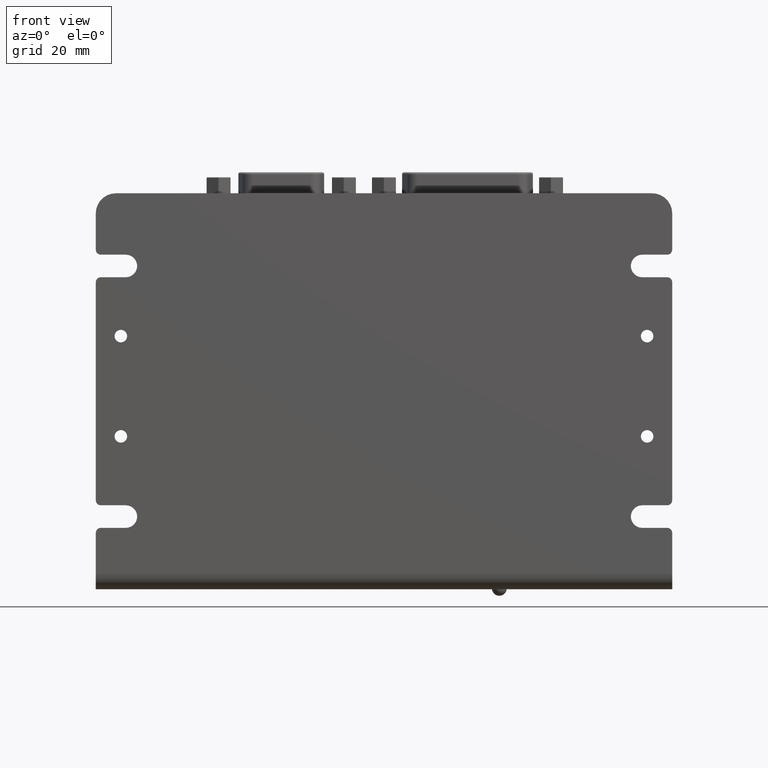
[diagram: clean part render]
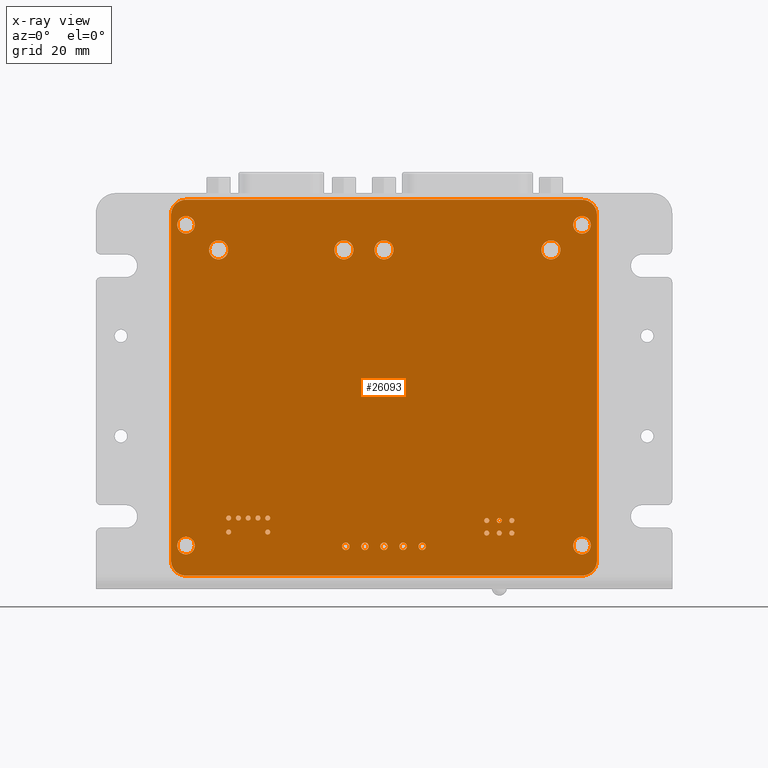
[diagram: x-ray — body ghosted, one internal face saturated and labeled with its STEP entity id]
A machine part, front view, then the same camera in x-ray: the body is ghosted and one INTERNAL B-rep face — a face not visible from any outside direction — is saturated and labeled: STEP entity #26093.
In plain terms, the highlighted planar face has unit normal (0, 1, 0).
Its self-contained STEP definition (entity closure, byte-faithful):
#24842=CARTESIAN_POINT('',(3.95E1,0.E0,3.25E1));
#24843=DIRECTION('',(0.E0,-1.E0,0.E0));
#24844=DIRECTION('',(1.E0,0.E0,0.E0));
#24845=AXIS2_PLACEMENT_3D('',#24842,#24843,#24844);
#24847=CARTESIAN_POINT('',(3.95E1,0.E0,3.25E1));
#24848=DIRECTION('',(0.E0,-1.E0,0.E0));
#24849=DIRECTION('',(-1.E0,0.E0,0.E0));
#24850=AXIS2_PLACEMENT_3D('',#24847,#24848,#24849);
#24852=CARTESIAN_POINT('',(3.95E1,0.E0,-3.15E1));
#24853=DIRECTION('',(0.E0,-1.E0,0.E0));
#24854=DIRECTION('',(1.E0,0.E0,0.E0));
#24855=AXIS2_PLACEMENT_3D('',#24852,#24853,#24854);
#24857=CARTESIAN_POINT('',(3.95E1,0.E0,-3.15E1));
#24858=DIRECTION('',(0.E0,-1.E0,0.E0));
#24859=DIRECTION('',(-1.E0,0.E0,0.E0));
#24860=AXIS2_PLACEMENT_3D('',#24857,#24858,#24859);
#24862=CARTESIAN_POINT('',(-3.95E1,0.E0,3.25E1));
#24863=DIRECTION('',(0.E0,-1.E0,0.E0));
#24864=DIRECTION('',(1.E0,0.E0,0.E0));
#24865=AXIS2_PLACEMENT_3D('',#24862,#24863,#24864);
#24867=CARTESIAN_POINT('',(-3.95E1,0.E0,3.25E1));
#24868=DIRECTION('',(0.E0,-1.E0,0.E0));
#24869=DIRECTION('',(-1.E0,0.E0,0.E0));
#24870=AXIS2_PLACEMENT_3D('',#24867,#24868,#24869);
#24872=CARTESIAN_POINT('',(-3.95E1,0.E0,-3.15E1));
#24873=DIRECTION('',(0.E0,-1.E0,0.E0));
#24874=DIRECTION('',(1.E0,0.E0,0.E0));
#24875=AXIS2_PLACEMENT_3D('',#24872,#24873,#24874);
#24877=CARTESIAN_POINT('',(-3.95E1,0.E0,-3.15E1));
#24878=DIRECTION('',(0.E0,-1.E0,0.E0));
#24879=DIRECTION('',(-1.E0,0.E0,0.E0));
#24880=AXIS2_PLACEMENT_3D('',#24877,#24878,#24879);
#24882=CARTESIAN_POINT('',(3.33E1,0.E0,2.75E1));
#24883=DIRECTION('',(0.E0,1.E0,0.E0));
#24884=DIRECTION('',(1.E0,0.E0,0.E0));
#24885=AXIS2_PLACEMENT_3D('',#24882,#24883,#24884);
#24887=CARTESIAN_POINT('',(3.33E1,0.E0,2.75E1));
#24888=DIRECTION('',(0.E0,1.E0,0.E0));
#24889=DIRECTION('',(-1.E0,0.E0,0.E0));
#24890=AXIS2_PLACEMENT_3D('',#24887,#24888,#24889);
#24892=CARTESIAN_POINT('',(0.E0,0.E0,2.75E1));
#24893=DIRECTION('',(0.E0,1.E0,0.E0));
#24894=DIRECTION('',(1.E0,0.E0,0.E0));
#24895=AXIS2_PLACEMENT_3D('',#24892,#24893,#24894);
#24897=CARTESIAN_POINT('',(0.E0,0.E0,2.75E1));
#24898=DIRECTION('',(0.E0,1.E0,0.E0));
#24899=DIRECTION('',(-1.E0,0.E0,0.E0));
#24900=AXIS2_PLACEMENT_3D('',#24897,#24898,#24899);
#24902=CARTESIAN_POINT('',(-8.E0,0.E0,2.75E1));
#24903=DIRECTION('',(0.E0,1.E0,0.E0));
#24904=DIRECTION('',(1.E0,0.E0,0.E0));
#24905=AXIS2_PLACEMENT_3D('',#24902,#24903,#24904);
#24907=CARTESIAN_POINT('',(-8.E0,0.E0,2.75E1));
#24908=DIRECTION('',(0.E0,1.E0,0.E0));
#24909=DIRECTION('',(-1.E0,0.E0,0.E0));
#24910=AXIS2_PLACEMENT_3D('',#24907,#24908,#24909);
#24912=CARTESIAN_POINT('',(-3.3E1,0.E0,2.75E1));
#24913=DIRECTION('',(0.E0,1.E0,0.E0));
#24914=DIRECTION('',(1.E0,0.E0,0.E0));
#24915=AXIS2_PLACEMENT_3D('',#24912,#24913,#24914);
#24917=CARTESIAN_POINT('',(-3.3E1,0.E0,2.75E1));
#24918=DIRECTION('',(0.E0,1.E0,0.E0));
#24919=DIRECTION('',(-1.E0,0.E0,0.E0));
#24920=AXIS2_PLACEMENT_3D('',#24917,#24918,#24919);
#24922=CARTESIAN_POINT('',(-7.62E0,0.E0,-3.165E1));
#24923=DIRECTION('',(0.E0,-1.E0,0.E0));
#24924=DIRECTION('',(1.E0,0.E0,0.E0));
#24925=AXIS2_PLACEMENT_3D('',#24922,#24923,#24924);
#24927=CARTESIAN_POINT('',(-7.62E0,0.E0,-3.165E1));
#24928=DIRECTION('',(0.E0,-1.E0,0.E0));
#24929=DIRECTION('',(-1.E0,0.E0,0.E0));
#24930=AXIS2_PLACEMENT_3D('',#24927,#24928,#24929);
#24932=CARTESIAN_POINT('',(-3.81E0,0.E0,-3.165E1));
#24933=DIRECTION('',(0.E0,-1.E0,0.E0));
#24934=DIRECTION('',(1.E0,0.E0,0.E0));
#24935=AXIS2_PLACEMENT_3D('',#24932,#24933,#24934);
#24937=CARTESIAN_POINT('',(-3.81E0,0.E0,-3.165E1));
#24938=DIRECTION('',(0.E0,-1.E0,0.E0));
#24939=DIRECTION('',(-1.E0,0.E0,0.E0));
#24940=AXIS2_PLACEMENT_3D('',#24937,#24938,#24939);
#24942=CARTESIAN_POINT('',(0.E0,0.E0,-3.165E1));
#24943=DIRECTION('',(0.E0,-1.E0,0.E0));
#24944=DIRECTION('',(1.E0,0.E0,0.E0));
#24945=AXIS2_PLACEMENT_3D('',#24942,#24943,#24944);
#24947=CARTESIAN_POINT('',(0.E0,0.E0,-3.165E1));
#24948=DIRECTION('',(0.E0,-1.E0,0.E0));
#24949=DIRECTION('',(-1.E0,0.E0,0.E0));
#24950=AXIS2_PLACEMENT_3D('',#24947,#24948,#24949);
#24952=CARTESIAN_POINT('',(3.81E0,0.E0,-3.165E1));
#24953=DIRECTION('',(0.E0,-1.E0,0.E0));
#24954=DIRECTION('',(1.E0,0.E0,0.E0));
#24955=AXIS2_PLACEMENT_3D('',#24952,#24953,#24954);
#24957=CARTESIAN_POINT('',(3.81E0,0.E0,-3.165E1));
#24958=DIRECTION('',(0.E0,-1.E0,0.E0));
#24959=DIRECTION('',(-1.E0,0.E0,0.E0));
#24960=AXIS2_PLACEMENT_3D('',#24957,#24958,#24959);
#24962=CARTESIAN_POINT('',(7.62E0,0.E0,-3.165E1));
#24963=DIRECTION('',(0.E0,-1.E0,0.E0));
#24964=DIRECTION('',(1.E0,0.E0,0.E0));
#24965=AXIS2_PLACEMENT_3D('',#24962,#24963,#24964);
#24967=CARTESIAN_POINT('',(7.62E0,0.E0,-3.165E1));
#24968=DIRECTION('',(0.E0,-1.E0,0.E0));
#24969=DIRECTION('',(-1.E0,0.E0,0.E0));
#24970=AXIS2_PLACEMENT_3D('',#24967,#24968,#24969);
#24972=CARTESIAN_POINT('',(3.95E1,0.E0,-3.45E1));
#24973=DIRECTION('',(0.E0,-1.E0,0.E0));
#24974=DIRECTION('',(0.E0,0.E0,-1.E0));
#24975=AXIS2_PLACEMENT_3D('',#24972,#24973,#24974);
#24977=DIRECTION('',(-1.E0,0.E0,0.E0));
#24978=VECTOR('',#24977,7.9E1);
#24979=CARTESIAN_POINT('',(3.95E1,0.E0,-3.75E1));
#24980=LINE('',#24979,#24978);
#24981=CARTESIAN_POINT('',(-3.95E1,0.E0,-3.45E1));
#24982=DIRECTION('',(0.E0,-1.E0,0.E0));
#24983=DIRECTION('',(-1.E0,0.E0,0.E0));
#24984=AXIS2_PLACEMENT_3D('',#24981,#24982,#24983);
#24986=DIRECTION('',(0.E0,0.E0,1.E0));
#24987=VECTOR('',#24986,6.9E1);
#24988=CARTESIAN_POINT('',(-4.25E1,0.E0,-3.45E1));
#24989=LINE('',#24988,#24987);
#24990=CARTESIAN_POINT('',(-3.95E1,0.E0,3.45E1));
#24991=DIRECTION('',(0.E0,-1.E0,0.E0));
#24992=DIRECTION('',(0.E0,0.E0,1.E0));
#24993=AXIS2_PLACEMENT_3D('',#24990,#24991,#24992);
#24995=DIRECTION('',(1.E0,0.E0,0.E0));
#24996=VECTOR('',#24995,7.9E1);
#24997=CARTESIAN_POINT('',(-3.95E1,0.E0,3.75E1));
#24998=LINE('',#24997,#24996);
#24999=CARTESIAN_POINT('',(3.95E1,0.E0,3.45E1));
#25000=DIRECTION('',(0.E0,-1.E0,0.E0));
#25001=DIRECTION('',(1.E0,0.E0,0.E0));
#25002=AXIS2_PLACEMENT_3D('',#24999,#25000,#25001);
#25004=DIRECTION('',(0.E0,0.E0,-1.E0));
#25005=VECTOR('',#25004,6.9E1);
#25006=CARTESIAN_POINT('',(4.25E1,0.E0,3.45E1));
#25007=LINE('',#25006,#25005);
#25008=CARTESIAN_POINT('',(-3.1E1,0.E0,-2.88E1));
#25009=DIRECTION('',(0.E0,-1.E0,0.E0));
#25010=DIRECTION('',(1.E0,0.E0,0.E0));
#25011=AXIS2_PLACEMENT_3D('',#25008,#25009,#25010);
#25013=CARTESIAN_POINT('',(-3.1E1,0.E0,-2.88E1));
#25014=DIRECTION('',(0.E0,-1.E0,0.E0));
#25015=DIRECTION('',(-1.E0,0.E0,0.E0));
#25016=AXIS2_PLACEMENT_3D('',#25013,#25014,#25015);
#25018=CARTESIAN_POINT('',(-2.32E1,0.E0,-2.88E1));
#25019=DIRECTION('',(0.E0,-1.E0,0.E0));
#25020=DIRECTION('',(1.E0,0.E0,0.E0));
#25021=AXIS2_PLACEMENT_3D('',#25018,#25019,#25020);
#25023=CARTESIAN_POINT('',(-2.32E1,0.E0,-2.88E1));
#25024=DIRECTION('',(0.E0,-1.E0,0.E0));
#25025=DIRECTION('',(-1.E0,0.E0,0.E0));
#25026=AXIS2_PLACEMENT_3D('',#25023,#25024,#25025);
#25028=CARTESIAN_POINT('',(-3.1E1,0.E0,-2.6E1));
#25029=DIRECTION('',(0.E0,-1.E0,0.E0));
#25030=DIRECTION('',(1.E0,0.E0,0.E0));
#25031=AXIS2_PLACEMENT_3D('',#25028,#25029,#25030);
#25033=CARTESIAN_POINT('',(-3.1E1,0.E0,-2.6E1));
#25034=DIRECTION('',(0.E0,-1.E0,0.E0));
#25035=DIRECTION('',(-1.E0,0.E0,0.E0));
#25036=AXIS2_PLACEMENT_3D('',#25033,#25034,#25035);
#25038=CARTESIAN_POINT('',(-2.905E1,0.E0,-2.6E1));
#25039=DIRECTION('',(0.E0,-1.E0,0.E0));
#25040=DIRECTION('',(1.E0,0.E0,0.E0));
#25041=AXIS2_PLACEMENT_3D('',#25038,#25039,#25040);
#25043=CARTESIAN_POINT('',(-2.905E1,0.E0,-2.6E1));
#25044=DIRECTION('',(0.E0,-1.E0,0.E0));
#25045=DIRECTION('',(-1.E0,0.E0,0.E0));
#25046=AXIS2_PLACEMENT_3D('',#25043,#25044,#25045);
#25048=CARTESIAN_POINT('',(-2.71E1,0.E0,-2.6E1));
#25049=DIRECTION('',(0.E0,-1.E0,0.E0));
#25050=DIRECTION('',(1.E0,0.E0,0.E0));
#25051=AXIS2_PLACEMENT_3D('',#25048,#25049,#25050);
#25053=CARTESIAN_POINT('',(-2.71E1,0.E0,-2.6E1));
#25054=DIRECTION('',(0.E0,-1.E0,0.E0));
#25055=DIRECTION('',(-1.E0,0.E0,0.E0));
#25056=AXIS2_PLACEMENT_3D('',#25053,#25054,#25055);
#25058=CARTESIAN_POINT('',(-2.515E1,0.E0,-2.6E1));
#25059=DIRECTION('',(0.E0,-1.E0,0.E0));
#25060=DIRECTION('',(1.E0,0.E0,0.E0));
#25061=AXIS2_PLACEMENT_3D('',#25058,#25059,#25060);
#25063=CARTESIAN_POINT('',(-2.515E1,0.E0,-2.6E1));
#25064=DIRECTION('',(0.E0,-1.E0,0.E0));
#25065=DIRECTION('',(-1.E0,0.E0,0.E0));
#25066=AXIS2_PLACEMENT_3D('',#25063,#25064,#25065);
#25068=CARTESIAN_POINT('',(-2.32E1,0.E0,-2.6E1));
#25069=DIRECTION('',(0.E0,-1.E0,0.E0));
#25070=DIRECTION('',(1.E0,0.E0,0.E0));
#25071=AXIS2_PLACEMENT_3D('',#25068,#25069,#25070);
#25073=CARTESIAN_POINT('',(-2.32E1,0.E0,-2.6E1));
#25074=DIRECTION('',(0.E0,-1.E0,0.E0));
#25075=DIRECTION('',(-1.E0,0.E0,0.E0));
#25076=AXIS2_PLACEMENT_3D('',#25073,#25074,#25075);
#25078=CARTESIAN_POINT('',(2.05E1,0.E0,-2.9E1));
#25079=DIRECTION('',(0.E0,-1.E0,0.E0));
#25080=DIRECTION('',(1.E0,0.E0,0.E0));
#25081=AXIS2_PLACEMENT_3D('',#25078,#25079,#25080);
#25083=CARTESIAN_POINT('',(2.05E1,0.E0,-2.9E1));
#25084=DIRECTION('',(0.E0,-1.E0,0.E0));
#25085=DIRECTION('',(-1.E0,0.E0,0.E0));
#25086=AXIS2_PLACEMENT_3D('',#25083,#25084,#25085);
#25088=CARTESIAN_POINT('',(2.3E1,0.E0,-2.9E1));
#25089=DIRECTION('',(0.E0,-1.E0,0.E0));
#25090=DIRECTION('',(1.E0,0.E0,0.E0));
#25091=AXIS2_PLACEMENT_3D('',#25088,#25089,#25090);
#25093=CARTESIAN_POINT('',(2.3E1,0.E0,-2.9E1));
#25094=DIRECTION('',(0.E0,-1.E0,0.E0));
#25095=DIRECTION('',(-1.E0,0.E0,0.E0));
#25096=AXIS2_PLACEMENT_3D('',#25093,#25094,#25095);
#25098=CARTESIAN_POINT('',(2.55E1,0.E0,-2.9E1));
#25099=DIRECTION('',(0.E0,-1.E0,0.E0));
#25100=DIRECTION('',(1.E0,0.E0,0.E0));
#25101=AXIS2_PLACEMENT_3D('',#25098,#25099,#25100);
#25103=CARTESIAN_POINT('',(2.55E1,0.E0,-2.9E1));
#25104=DIRECTION('',(0.E0,-1.E0,0.E0));
#25105=DIRECTION('',(-1.E0,0.E0,0.E0));
#25106=AXIS2_PLACEMENT_3D('',#25103,#25104,#25105);
#25108=CARTESIAN_POINT('',(2.05E1,0.E0,-2.65E1));
#25109=DIRECTION('',(0.E0,-1.E0,0.E0));
#25110=DIRECTION('',(1.E0,0.E0,0.E0));
#25111=AXIS2_PLACEMENT_3D('',#25108,#25109,#25110);
#25113=CARTESIAN_POINT('',(2.05E1,0.E0,-2.65E1));
#25114=DIRECTION('',(0.E0,-1.E0,0.E0));
#25115=DIRECTION('',(-1.E0,0.E0,0.E0));
#25116=AXIS2_PLACEMENT_3D('',#25113,#25114,#25115);
#25118=CARTESIAN_POINT('',(2.3E1,0.E0,-2.65E1));
#25119=DIRECTION('',(0.E0,-1.E0,0.E0));
#25120=DIRECTION('',(1.E0,0.E0,0.E0));
#25121=AXIS2_PLACEMENT_3D('',#25118,#25119,#25120);
#25123=CARTESIAN_POINT('',(2.3E1,0.E0,-2.65E1));
#25124=DIRECTION('',(0.E0,-1.E0,0.E0));
#25125=DIRECTION('',(-1.E0,0.E0,0.E0));
#25126=AXIS2_PLACEMENT_3D('',#25123,#25124,#25125);
#25128=CARTESIAN_POINT('',(2.55E1,0.E0,-2.65E1));
#25129=DIRECTION('',(0.E0,-1.E0,0.E0));
#25130=DIRECTION('',(1.E0,0.E0,0.E0));
#25131=AXIS2_PLACEMENT_3D('',#25128,#25129,#25130);
#25133=CARTESIAN_POINT('',(2.55E1,0.E0,-2.65E1));
#25134=DIRECTION('',(0.E0,-1.E0,0.E0));
#25135=DIRECTION('',(-1.E0,0.E0,0.E0));
#25136=AXIS2_PLACEMENT_3D('',#25133,#25134,#25135);
#25674=CARTESIAN_POINT('',(4.125E1,0.E0,3.25E1));
#25675=CARTESIAN_POINT('',(3.775E1,0.E0,3.25E1));
#25676=VERTEX_POINT('',#25674);
#25677=VERTEX_POINT('',#25675);
#25678=CARTESIAN_POINT('',(4.125E1,0.E0,-3.15E1));
#25679=CARTESIAN_POINT('',(3.775E1,0.E0,-3.15E1));
#25680=VERTEX_POINT('',#25678);
#25681=VERTEX_POINT('',#25679);
#25682=CARTESIAN_POINT('',(-3.775E1,0.E0,3.25E1));
#25683=CARTESIAN_POINT('',(-4.125E1,0.E0,3.25E1));
#25684=VERTEX_POINT('',#25682);
#25685=VERTEX_POINT('',#25683);
#25686=CARTESIAN_POINT('',(-3.775E1,0.E0,-3.15E1));
#25687=CARTESIAN_POINT('',(-4.125E1,0.E0,-3.15E1));
#25688=VERTEX_POINT('',#25686);
#25689=VERTEX_POINT('',#25687);
#25706=CARTESIAN_POINT('',(3.95E1,0.E0,-3.75E1));
#25707=CARTESIAN_POINT('',(4.25E1,0.E0,-3.45E1));
#25708=VERTEX_POINT('',#25706);
#25709=VERTEX_POINT('',#25707);
#25714=CARTESIAN_POINT('',(-4.25E1,0.E0,-3.45E1));
#25715=CARTESIAN_POINT('',(-3.95E1,0.E0,-3.75E1));
#25716=VERTEX_POINT('',#25714);
#25717=VERTEX_POINT('',#25715);
#25722=CARTESIAN_POINT('',(-3.95E1,0.E0,3.75E1));
#25723=CARTESIAN_POINT('',(-4.25E1,0.E0,3.45E1));
#25724=VERTEX_POINT('',#25722);
#25725=VERTEX_POINT('',#25723);
#25730=CARTESIAN_POINT('',(4.25E1,0.E0,3.45E1));
#25731=CARTESIAN_POINT('',(3.95E1,0.E0,3.75E1));
#25732=VERTEX_POINT('',#25730);
#25733=VERTEX_POINT('',#25731);
#25738=CARTESIAN_POINT('',(3.52E1,0.E0,2.75E1));
#25739=CARTESIAN_POINT('',(3.14E1,0.E0,2.75E1));
#25740=VERTEX_POINT('',#25738);
#25741=VERTEX_POINT('',#25739);
#25742=CARTESIAN_POINT('',(1.9E0,0.E0,2.75E1));
#25743=CARTESIAN_POINT('',(-1.9E0,0.E0,2.75E1));
#25744=VERTEX_POINT('',#25742);
#25745=VERTEX_POINT('',#25743);
#25746=CARTESIAN_POINT('',(-6.1E0,0.E0,2.75E1));
#25747=CARTESIAN_POINT('',(-9.9E0,0.E0,2.75E1));
#25748=VERTEX_POINT('',#25746);
#25749=VERTEX_POINT('',#25747);
#25750=CARTESIAN_POINT('',(-3.11E1,0.E0,2.75E1));
#25751=CARTESIAN_POINT('',(-3.49E1,0.E0,2.75E1));
#25752=VERTEX_POINT('',#25750);
#25753=VERTEX_POINT('',#25751);
#25770=CARTESIAN_POINT('',(-6.87E0,0.E0,-3.165E1));
#25771=CARTESIAN_POINT('',(-8.37E0,0.E0,-3.165E1));
#25772=VERTEX_POINT('',#25770);
#25773=VERTEX_POINT('',#25771);
#25778=CARTESIAN_POINT('',(-3.06E0,0.E0,-3.165E1));
#25779=CARTESIAN_POINT('',(-4.56E0,0.E0,-3.165E1));
#25780=VERTEX_POINT('',#25778);
#25781=VERTEX_POINT('',#25779);
#25786=CARTESIAN_POINT('',(7.5E-1,0.E0,-3.165E1));
#25787=CARTESIAN_POINT('',(-7.5E-1,0.E0,-3.165E1));
#25788=VERTEX_POINT('',#25786);
#25789=VERTEX_POINT('',#25787);
#25794=CARTESIAN_POINT('',(4.56E0,0.E0,-3.165E1));
#25795=CARTESIAN_POINT('',(3.06E0,0.E0,-3.165E1));
#25796=VERTEX_POINT('',#25794);
#25797=VERTEX_POINT('',#25795);
#25802=CARTESIAN_POINT('',(8.37E0,0.E0,-3.165E1));
#25803=CARTESIAN_POINT('',(6.87E0,0.E0,-3.165E1));
#25804=VERTEX_POINT('',#25802);
#25805=VERTEX_POINT('',#25803);
#25810=CARTESIAN_POINT('',(-3.05E1,0.E0,-2.88E1));
#25811=CARTESIAN_POINT('',(-3.15E1,0.E0,-2.88E1));
#25812=VERTEX_POINT('',#25810);
#25813=VERTEX_POINT('',#25811);
#25818=CARTESIAN_POINT('',(-3.05E1,0.E0,-2.6E1));
#25819=CARTESIAN_POINT('',(-3.15E1,0.E0,-2.6E1));
#25820=VERTEX_POINT('',#25818);
#25821=VERTEX_POINT('',#25819);
#25826=CARTESIAN_POINT('',(-2.27E1,0.E0,-2.88E1));
#25827=CARTESIAN_POINT('',(-2.37E1,0.E0,-2.88E1));
#25828=VERTEX_POINT('',#25826);
#25829=VERTEX_POINT('',#25827);
#25834=CARTESIAN_POINT('',(-2.27E1,0.E0,-2.6E1));
#25835=CARTESIAN_POINT('',(-2.37E1,0.E0,-2.6E1));
#25836=VERTEX_POINT('',#25834);
#25837=VERTEX_POINT('',#25835);
#25842=CARTESIAN_POINT('',(2.1E1,0.E0,-2.9E1));
#25843=CARTESIAN_POINT('',(2.E1,0.E0,-2.9E1));
#25844=VERTEX_POINT('',#25842);
#25845=VERTEX_POINT('',#25843);
#25850=CARTESIAN_POINT('',(2.35E1,0.E0,-2.9E1));
#25851=CARTESIAN_POINT('',(2.25E1,0.E0,-2.9E1));
#25852=VERTEX_POINT('',#25850);
#25853=VERTEX_POINT('',#25851);
#25858=CARTESIAN_POINT('',(2.6E1,0.E0,-2.9E1));
#25859=CARTESIAN_POINT('',(2.5E1,0.E0,-2.9E1));
#25860=VERTEX_POINT('',#25858);
#25861=VERTEX_POINT('',#25859);
#25866=CARTESIAN_POINT('',(2.1E1,0.E0,-2.65E1));
#25867=CARTESIAN_POINT('',(2.E1,0.E0,-2.65E1));
#25868=VERTEX_POINT('',#25866);
#25869=VERTEX_POINT('',#25867);
#25874=CARTESIAN_POINT('',(2.35E1,0.E0,-2.65E1));
#25875=CARTESIAN_POINT('',(2.25E1,0.E0,-2.65E1));
#25876=VERTEX_POINT('',#25874);
#25877=VERTEX_POINT('',#25875);
#25882=CARTESIAN_POINT('',(2.6E1,0.E0,-2.65E1));
#25883=CARTESIAN_POINT('',(2.5E1,0.E0,-2.65E1));
#25884=VERTEX_POINT('',#25882);
#25885=VERTEX_POINT('',#25883);
#25890=CARTESIAN_POINT('',(-2.855E1,0.E0,-2.6E1));
#25891=CARTESIAN_POINT('',(-2.955E1,0.E0,-2.6E1));
#25892=VERTEX_POINT('',#25890);
#25893=VERTEX_POINT('',#25891);
#25898=CARTESIAN_POINT('',(-2.66E1,0.E0,-2.6E1));
#25899=CARTESIAN_POINT('',(-2.76E1,0.E0,-2.6E1));
#25900=VERTEX_POINT('',#25898);
#25901=VERTEX_POINT('',#25899);
#25906=CARTESIAN_POINT('',(-2.465E1,0.E0,-2.6E1));
#25907=CARTESIAN_POINT('',(-2.565E1,0.E0,-2.6E1));
#25908=VERTEX_POINT('',#25906);
#25909=VERTEX_POINT('',#25907);
#25914=CARTESIAN_POINT('',(0.E0,0.E0,0.E0));
#25915=DIRECTION('',(0.E0,1.E0,0.E0));
#25916=DIRECTION('',(1.E0,0.E0,0.E0));
#25917=AXIS2_PLACEMENT_3D('',#25914,#25915,#25916);
#25918=PLANE('',#25917);
#25920=ORIENTED_EDGE('',*,*,#25919,.F.);
#25922=ORIENTED_EDGE('',*,*,#25921,.T.);
#25924=ORIENTED_EDGE('',*,*,#25923,.F.);
#25926=ORIENTED_EDGE('',*,*,#25925,.T.);
#25928=ORIENTED_EDGE('',*,*,#25927,.F.);
#25930=ORIENTED_EDGE('',*,*,#25929,.T.);
#25932=ORIENTED_EDGE('',*,*,#25931,.F.);
#25934=ORIENTED_EDGE('',*,*,#25933,.T.);
#25935=EDGE_LOOP('',(#25920,#25922,#25924,#25926,#25928,#25930,#25932,#25934));
#25936=FACE_OUTER_BOUND('',#25935,.F.);
#25938=ORIENTED_EDGE('',*,*,#25937,.T.);
#25940=ORIENTED_EDGE('',*,*,#25939,.T.);
#25941=EDGE_LOOP('',(#25938,#25940));
#25942=FACE_BOUND('',#25941,.F.);
#25944=ORIENTED_EDGE('',*,*,#25943,.T.);
#25946=ORIENTED_EDGE('',*,*,#25945,.T.);
#25947=EDGE_LOOP('',(#25944,#25946));
#25948=FACE_BOUND('',#25947,.F.);
#25950=ORIENTED_EDGE('',*,*,#25949,.T.);
#25952=ORIENTED_EDGE('',*,*,#25951,.T.);
#25953=EDGE_LOOP('',(#25950,#25952));
#25954=FACE_BOUND('',#25953,.F.);
#25956=ORIENTED_EDGE('',*,*,#25955,.F.);
#25958=ORIENTED_EDGE('',*,*,#25957,.F.);
#25959=EDGE_LOOP('',(#25956,#25958));
#25960=FACE_BOUND('',#25959,.F.);
#25962=ORIENTED_EDGE('',*,*,#25961,.F.);
#25964=ORIENTED_EDGE('',*,*,#25963,.F.);
#25965=EDGE_LOOP('',(#25962,#25964));
#25966=FACE_BOUND('',#25965,.F.);
#25968=ORIENTED_EDGE('',*,*,#25967,.F.);
#25970=ORIENTED_EDGE('',*,*,#25969,.F.);
#25971=EDGE_LOOP('',(#25968,#25970));
#25972=FACE_BOUND('',#25971,.F.);
#25974=ORIENTED_EDGE('',*,*,#25973,.F.);
#25976=ORIENTED_EDGE('',*,*,#25975,.F.);
#25977=EDGE_LOOP('',(#25974,#25976));
#25978=FACE_BOUND('',#25977,.F.);
#25980=ORIENTED_EDGE('',*,*,#25979,.T.);
#25982=ORIENTED_EDGE('',*,*,#25981,.T.);
#25983=EDGE_LOOP('',(#25980,#25982));
#25984=FACE_BOUND('',#25983,.F.);
#25986=ORIENTED_EDGE('',*,*,#25985,.T.);
#25988=ORIENTED_EDGE('',*,*,#25987,.T.);
#25989=EDGE_LOOP('',(#25986,#25988));
#25990=FACE_BOUND('',#25989,.F.);
#25992=ORIENTED_EDGE('',*,*,#25991,.T.);
#25994=ORIENTED_EDGE('',*,*,#25993,.T.);
#25995=EDGE_LOOP('',(#25992,#25994));
#25996=FACE_BOUND('',#25995,.F.);
#25998=ORIENTED_EDGE('',*,*,#25997,.T.);
#26000=ORIENTED_EDGE('',*,*,#25999,.T.);
#26001=EDGE_LOOP('',(#25998,#26000));
#26002=FACE_BOUND('',#26001,.F.);
#26004=ORIENTED_EDGE('',*,*,#26003,.T.);
#26006=ORIENTED_EDGE('',*,*,#26005,.T.);
#26007=EDGE_LOOP('',(#26004,#26006));
#26008=FACE_BOUND('',#26007,.F.);
#26010=ORIENTED_EDGE('',*,*,#26009,.T.);
#26012=ORIENTED_EDGE('',*,*,#26011,.T.);
#26013=EDGE_LOOP('',(#26010,#26012));
#26014=FACE_BOUND('',#26013,.F.);
#26016=ORIENTED_EDGE('',*,*,#26015,.T.);
#26018=ORIENTED_EDGE('',*,*,#26017,.T.);
#26019=EDGE_LOOP('',(#26016,#26018));
#26020=FACE_BOUND('',#26019,.F.);
#26022=ORIENTED_EDGE('',*,*,#26021,.T.);
#26024=ORIENTED_EDGE('',*,*,#26023,.T.);
#26025=EDGE_LOOP('',(#26022,#26024));
#26026=FACE_BOUND('',#26025,.F.);
#26028=ORIENTED_EDGE('',*,*,#26027,.T.);
#26030=ORIENTED_EDGE('',*,*,#26029,.T.);
#26031=EDGE_LOOP('',(#26028,#26030));
#26032=FACE_BOUND('',#26031,.F.);
#26034=ORIENTED_EDGE('',*,*,#26033,.T.);
#26036=ORIENTED_EDGE('',*,*,#26035,.T.);
#26037=EDGE_LOOP('',(#26034,#26036));
#26038=FACE_BOUND('',#26037,.F.);
#26040=ORIENTED_EDGE('',*,*,#26039,.T.);
#26042=ORIENTED_EDGE('',*,*,#26041,.T.);
#26043=EDGE_LOOP('',(#26040,#26042));
#26044=FACE_BOUND('',#26043,.F.);
#26046=ORIENTED_EDGE('',*,*,#26045,.T.);
#26048=ORIENTED_EDGE('',*,*,#26047,.T.);
#26049=EDGE_LOOP('',(#26046,#26048));
#26050=FACE_BOUND('',#26049,.F.);
#26052=ORIENTED_EDGE('',*,*,#26051,.T.);
#26054=ORIENTED_EDGE('',*,*,#26053,.T.);
#26055=EDGE_LOOP('',(#26052,#26054));
#26056=FACE_BOUND('',#26055,.F.);
#26058=ORIENTED_EDGE('',*,*,#26057,.T.);
#26060=ORIENTED_EDGE('',*,*,#26059,.T.);
#26061=EDGE_LOOP('',(#26058,#26060));
#26062=FACE_BOUND('',#26061,.F.);
#26064=ORIENTED_EDGE('',*,*,#26063,.T.);
#26066=ORIENTED_EDGE('',*,*,#26065,.T.);
#26067=EDGE_LOOP('',(#26064,#26066));
#26068=FACE_BOUND('',#26067,.F.);
#26070=ORIENTED_EDGE('',*,*,#26069,.T.);
#26072=ORIENTED_EDGE('',*,*,#26071,.T.);
#26073=EDGE_LOOP('',(#26070,#26072));
#26074=FACE_BOUND('',#26073,.F.);
#26076=ORIENTED_EDGE('',*,*,#26075,.T.);
#26078=ORIENTED_EDGE('',*,*,#26077,.T.);
#26079=EDGE_LOOP('',(#26076,#26078));
#26080=FACE_BOUND('',#26079,.F.);
#26082=ORIENTED_EDGE('',*,*,#26081,.T.);
#26084=ORIENTED_EDGE('',*,*,#26083,.T.);
#26085=EDGE_LOOP('',(#26082,#26084));
#26086=FACE_BOUND('',#26085,.F.);
#26088=ORIENTED_EDGE('',*,*,#26087,.T.);
#26090=ORIENTED_EDGE('',*,*,#26089,.T.);
#26091=EDGE_LOOP('',(#26088,#26090));
#26092=FACE_BOUND('',#26091,.F.);
#26093=ADVANCED_FACE('',(#25936,#25942,#25948,#25954,#25960,#25966,#25972,
#25978,#25984,#25990,#25996,#26002,#26008,#26014,#26020,#26026,#26032,#26038,
#26044,#26050,#26056,#26062,#26068,#26074,#26080,#26086,#26092),#25918,.F.);
#24846=CIRCLE('',#24845,1.75E0);
#24851=CIRCLE('',#24850,1.75E0);
#24856=CIRCLE('',#24855,1.75E0);
#24861=CIRCLE('',#24860,1.75E0);
#24866=CIRCLE('',#24865,1.75E0);
#24871=CIRCLE('',#24870,1.75E0);
#24876=CIRCLE('',#24875,1.75E0);
#24881=CIRCLE('',#24880,1.75E0);
#24886=CIRCLE('',#24885,1.9E0);
#24891=CIRCLE('',#24890,1.9E0);
#24896=CIRCLE('',#24895,1.9E0);
#24901=CIRCLE('',#24900,1.9E0);
#24906=CIRCLE('',#24905,1.9E0);
#24911=CIRCLE('',#24910,1.9E0);
#24916=CIRCLE('',#24915,1.9E0);
#24921=CIRCLE('',#24920,1.9E0);
#24926=CIRCLE('',#24925,7.5E-1);
#24931=CIRCLE('',#24930,7.5E-1);
#24936=CIRCLE('',#24935,7.5E-1);
#24941=CIRCLE('',#24940,7.5E-1);
#24946=CIRCLE('',#24945,7.5E-1);
#24951=CIRCLE('',#24950,7.5E-1);
#24956=CIRCLE('',#24955,7.5E-1);
#24961=CIRCLE('',#24960,7.5E-1);
#24966=CIRCLE('',#24965,7.5E-1);
#24971=CIRCLE('',#24970,7.5E-1);
#24976=CIRCLE('',#24975,3.E0);
#24985=CIRCLE('',#24984,3.E0);
#24994=CIRCLE('',#24993,3.E0);
#25003=CIRCLE('',#25002,3.E0);
#25012=CIRCLE('',#25011,5.E-1);
#25017=CIRCLE('',#25016,5.E-1);
#25022=CIRCLE('',#25021,5.E-1);
#25027=CIRCLE('',#25026,5.E-1);
#25032=CIRCLE('',#25031,5.E-1);
#25037=CIRCLE('',#25036,5.E-1);
#25042=CIRCLE('',#25041,5.E-1);
#25047=CIRCLE('',#25046,5.E-1);
#25052=CIRCLE('',#25051,5.E-1);
#25057=CIRCLE('',#25056,5.E-1);
#25062=CIRCLE('',#25061,5.E-1);
#25067=CIRCLE('',#25066,5.E-1);
#25072=CIRCLE('',#25071,5.E-1);
#25077=CIRCLE('',#25076,5.E-1);
#25082=CIRCLE('',#25081,5.E-1);
#25087=CIRCLE('',#25086,5.E-1);
#25092=CIRCLE('',#25091,5.E-1);
#25097=CIRCLE('',#25096,5.E-1);
#25102=CIRCLE('',#25101,5.E-1);
#25107=CIRCLE('',#25106,5.E-1);
#25112=CIRCLE('',#25111,5.E-1);
#25117=CIRCLE('',#25116,5.E-1);
#25122=CIRCLE('',#25121,5.E-1);
#25127=CIRCLE('',#25126,5.E-1);
#25132=CIRCLE('',#25131,5.E-1);
#25137=CIRCLE('',#25136,5.E-1);
#25919=EDGE_CURVE('',#25708,#25709,#24976,.T.);
#25921=EDGE_CURVE('',#25708,#25717,#24980,.T.);
#25923=EDGE_CURVE('',#25716,#25717,#24985,.T.);
#25925=EDGE_CURVE('',#25716,#25725,#24989,.T.);
#25927=EDGE_CURVE('',#25724,#25725,#24994,.T.);
#25929=EDGE_CURVE('',#25724,#25733,#24998,.T.);
#25931=EDGE_CURVE('',#25732,#25733,#25003,.T.);
#25933=EDGE_CURVE('',#25732,#25709,#25007,.T.);
#25937=EDGE_CURVE('',#25680,#25681,#24856,.T.);
#25939=EDGE_CURVE('',#25681,#25680,#24861,.T.);
#25943=EDGE_CURVE('',#25684,#25685,#24866,.T.);
#25945=EDGE_CURVE('',#25685,#25684,#24871,.T.);
#25949=EDGE_CURVE('',#25688,#25689,#24876,.T.);
#25951=EDGE_CURVE('',#25689,#25688,#24881,.T.);
#25955=EDGE_CURVE('',#25740,#25741,#24886,.T.);
#25957=EDGE_CURVE('',#25741,#25740,#24891,.T.);
#25961=EDGE_CURVE('',#25744,#25745,#24896,.T.);
#25963=EDGE_CURVE('',#25745,#25744,#24901,.T.);
#25967=EDGE_CURVE('',#25748,#25749,#24906,.T.);
#25969=EDGE_CURVE('',#25749,#25748,#24911,.T.);
#25973=EDGE_CURVE('',#25752,#25753,#24916,.T.);
#25975=EDGE_CURVE('',#25753,#25752,#24921,.T.);
#25979=EDGE_CURVE('',#25772,#25773,#24926,.T.);
#25981=EDGE_CURVE('',#25773,#25772,#24931,.T.);
#25985=EDGE_CURVE('',#25780,#25781,#24936,.T.);
#25987=EDGE_CURVE('',#25781,#25780,#24941,.T.);
#25991=EDGE_CURVE('',#25788,#25789,#24946,.T.);
#25993=EDGE_CURVE('',#25789,#25788,#24951,.T.);
#25997=EDGE_CURVE('',#25796,#25797,#24956,.T.);
#25999=EDGE_CURVE('',#25797,#25796,#24961,.T.);
#26003=EDGE_CURVE('',#25804,#25805,#24966,.T.);
#26005=EDGE_CURVE('',#25805,#25804,#24971,.T.);
#26009=EDGE_CURVE('',#25676,#25677,#24846,.T.);
#26011=EDGE_CURVE('',#25677,#25676,#24851,.T.);
#26015=EDGE_CURVE('',#25812,#25813,#25012,.T.);
#26017=EDGE_CURVE('',#25813,#25812,#25017,.T.);
#26021=EDGE_CURVE('',#25828,#25829,#25022,.T.);
#26023=EDGE_CURVE('',#25829,#25828,#25027,.T.);
#26027=EDGE_CURVE('',#25820,#25821,#25032,.T.);
#26029=EDGE_CURVE('',#25821,#25820,#25037,.T.);
#26033=EDGE_CURVE('',#25892,#25893,#25042,.T.);
#26035=EDGE_CURVE('',#25893,#25892,#25047,.T.);
#26039=EDGE_CURVE('',#25900,#25901,#25052,.T.);
#26041=EDGE_CURVE('',#25901,#25900,#25057,.T.);
#26045=EDGE_CURVE('',#25908,#25909,#25062,.T.);
#26047=EDGE_CURVE('',#25909,#25908,#25067,.T.);
#26051=EDGE_CURVE('',#25836,#25837,#25072,.T.);
#26053=EDGE_CURVE('',#25837,#25836,#25077,.T.);
#26057=EDGE_CURVE('',#25844,#25845,#25082,.T.);
#26059=EDGE_CURVE('',#25845,#25844,#25087,.T.);
#26063=EDGE_CURVE('',#25852,#25853,#25092,.T.);
#26065=EDGE_CURVE('',#25853,#25852,#25097,.T.);
#26069=EDGE_CURVE('',#25860,#25861,#25102,.T.);
#26071=EDGE_CURVE('',#25861,#25860,#25107,.T.);
#26075=EDGE_CURVE('',#25868,#25869,#25112,.T.);
#26077=EDGE_CURVE('',#25869,#25868,#25117,.T.);
#26081=EDGE_CURVE('',#25876,#25877,#25122,.T.);
#26083=EDGE_CURVE('',#25877,#25876,#25127,.T.);
#26087=EDGE_CURVE('',#25884,#25885,#25132,.T.);
#26089=EDGE_CURVE('',#25885,#25884,#25137,.T.);